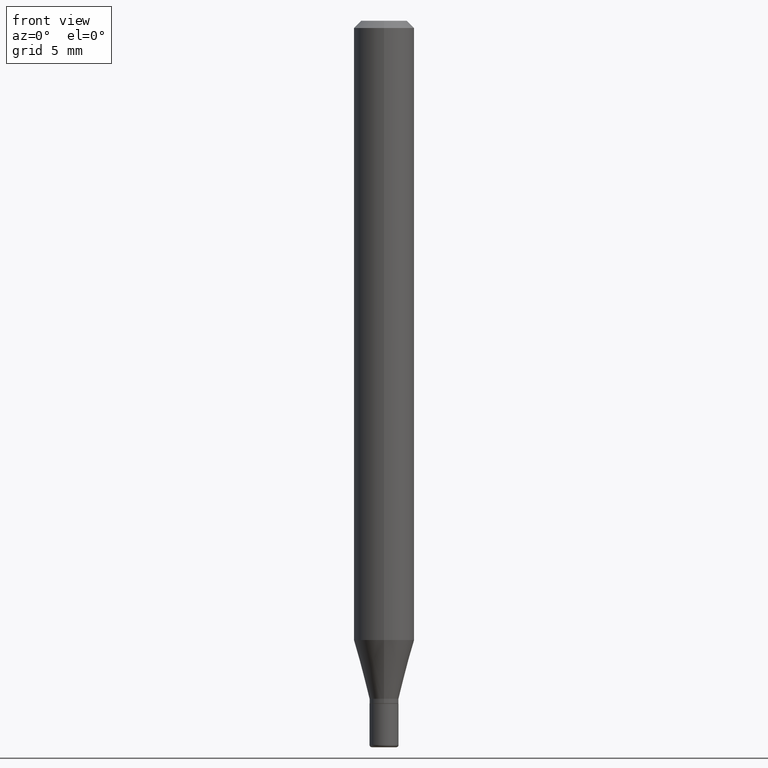
[diagram: clean part render]
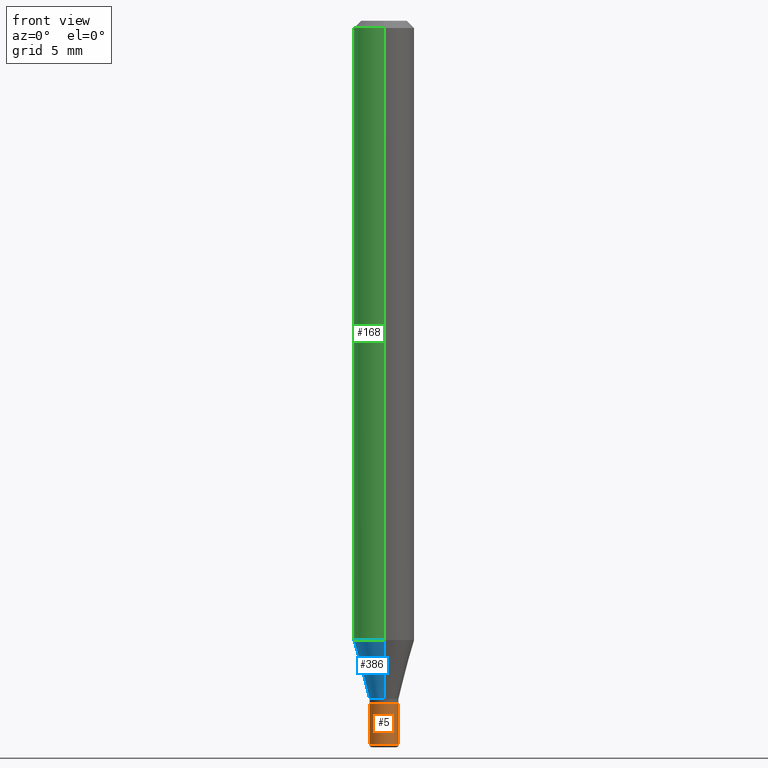
[diagram: same view with three faces highlighted in distinct colors, each labeled with its STEP entity id]
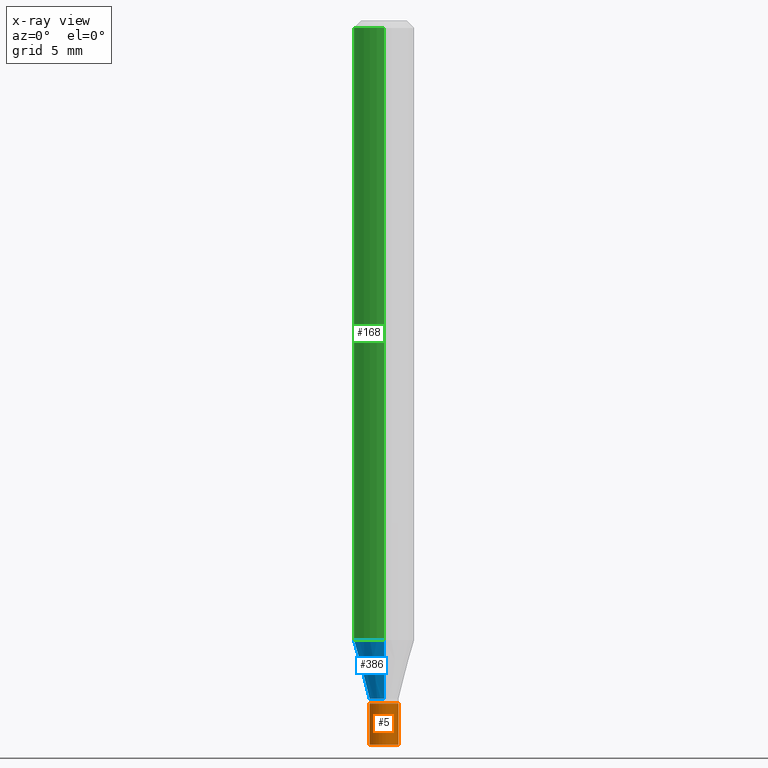
[diagram: x-ray of the same camera — body ghosted, the three highlighted faces saturated]
A machine part, front view with three faces highlighted in distinct colors.
The next image is the same camera in x-ray (body ghosted, the three faces saturated) — at least one of them is partly hidden behind the body in this view.
Their STEP definitions:

[orange] entity #5 — the highlighted cylindrical surface (edge-blend (fillet) strip) has radius 0.762 mm, axis along (-0, 0, 1).
#5 = ADVANCED_FACE ( 'NONE', ( #287 ), #89, .T. ) ;
#7 = CARTESIAN_POINT ( 'NONE',  ( 3.655975865246778562E-29, -5.219764601570502352E-15, -1.494999999999999662 ) ) ;
#26 = LINE ( 'NONE', #162, #494 ) ;
#59 = AXIS2_PLACEMENT_3D ( 'NONE', #133, #282, #86 ) ;
#62 = EDGE_CURVE ( 'NONE', #78, #166, #377, .T. ) ;
#77 = DIRECTION ( 'NONE',  ( -2.445468806185136877E-29, 3.491481338843145188E-15, 1.000000000000000000 ) ) ;
#78 = VERTEX_POINT ( 'NONE', #210 ) ;
#86 = DIRECTION ( 'NONE',  ( 1.000000000000000000, -6.982962677686268288E-15, 0.000000000000000000 ) ) ;
#89 = CYLINDRICAL_SURFACE ( 'NONE', #353, 0.03000000000000008910 ) ;
#95 = VECTOR ( 'NONE', #77, 39.37007874015748143 ) ;
#124 = EDGE_CURVE ( 'NONE', #495, #457, #288, .T. ) ;
#129 = DIRECTION ( 'NONE',  ( 1.000000000000000000, -6.982962677686259611E-15, 0.000000000000000000 ) ) ;
#133 = CARTESIAN_POINT ( 'NONE',  ( 3.448111016721042669E-29, -4.922988687768835701E-15, -1.409999999999999920 ) ) ;
#150 = AXIS2_PLACEMENT_3D ( 'NONE', #7, #172, #129 ) ;
#160 = ORIENTED_EDGE ( 'NONE', *, *, #451, .T. ) ;
#162 = CARTESIAN_POINT ( 'NONE',  ( -0.03000000000000008910, 2.131628207280306888E-16, -1.475680527076476261E-30 ) ) ;
#166 = VERTEX_POINT ( 'NONE', #478 ) ;
#172 = DIRECTION ( 'NONE',  ( -2.445468806185136597E-29, 3.491481338843145583E-15, 1.000000000000000000 ) ) ;
#173 = EDGE_CURVE ( 'NONE', #78, #495, #26, .T. ) ;
#198 = CARTESIAN_POINT ( 'NONE',  ( 0.02999999999999999889, -5.132477568099423229E-15, -1.409999999999999920 ) ) ;
#210 = CARTESIAN_POINT ( 'NONE',  ( -0.03000000000000017583, -4.858213823941637204E-15, -1.494999999999999662 ) ) ;
#230 = ORIENTED_EDGE ( 'NONE', *, *, #62, .T. ) ;
#277 = DIRECTION ( 'NONE',  ( -2.445468806185136597E-29, 3.491481338843145583E-15, 1.000000000000000000 ) ) ;
#282 = DIRECTION ( 'NONE',  ( -2.445468806185136597E-29, 3.491481338843145583E-15, 1.000000000000000000 ) ) ;
#285 = ORIENTED_EDGE ( 'NONE', *, *, #173, .F. ) ;
#287 = FACE_OUTER_BOUND ( 'NONE', #475, .T. ) ;
#288 = CIRCLE ( 'NONE', #59, 0.02999999999999999889 ) ;
#290 = ORIENTED_EDGE ( 'NONE', *, *, #124, .F. ) ;
#311 = DIRECTION ( 'NONE',  ( -2.445468806185136877E-29, 3.491481338843145188E-15, 1.000000000000000000 ) ) ;
#312 = CARTESIAN_POINT ( 'NONE',  ( 0.03000000000000008910, -2.094888803305886127E-16, 1.462853032738785082E-30 ) ) ;
#353 = AXIS2_PLACEMENT_3D ( 'NONE', #368, #277, #449 ) ;
#360 = CARTESIAN_POINT ( 'NONE',  ( -0.02999999999999999889, -4.858213823941637993E-15, -1.409999999999999920 ) ) ;
#368 = CARTESIAN_POINT ( 'NONE',  ( 0.000000000000000000, 0.000000000000000000, 0.000000000000000000 ) ) ;
#377 = CIRCLE ( 'NONE', #150, 0.03000000000000017583 ) ;
#405 = LINE ( 'NONE', #312, #95 ) ;
#449 = DIRECTION ( 'NONE',  ( 1.000000000000000000, -6.982962677686266711E-15, 4.876176775795935793E-29 ) ) ;
#451 = EDGE_CURVE ( 'NONE', #166, #457, #405, .T. ) ;
#457 = VERTEX_POINT ( 'NONE', #198 ) ;
#475 = EDGE_LOOP ( 'NONE', ( #285, #230, #160, #290 ) ) ;
#478 = CARTESIAN_POINT ( 'NONE',  ( 0.03000000000000017583, -5.429253481901091458E-15, -1.494999999999999662 ) ) ;
#494 = VECTOR ( 'NONE', #311, 39.37007874015748143 ) ;
#495 = VERTEX_POINT ( 'NONE', #360 ) ;

[blue] entity #386 — the highlighted conical surface has half-angle 15 deg.
#6 = CARTESIAN_POINT ( 'NONE',  ( 3.127180537988016728E-29, -4.464387054030078647E-15, -1.278708348754012292 ) ) ;
#49 = CONICAL_SURFACE ( 'NONE', #122, 0.03000000000000009950, 0.2617993877991495189 ) ;
#65 = EDGE_LOOP ( 'NONE', ( #212, #429, #76, #164 ) ) ;
#75 = DIRECTION ( 'NONE',  ( -2.445577633895310376E-29, 3.491325491368088236E-15, 1.000000000000000000 ) ) ;
#76 = ORIENTED_EDGE ( 'NONE', *, *, #408, .T. ) ;
#122 = AXIS2_PLACEMENT_3D ( 'NONE', #464, #225, #229 ) ;
#152 = DIRECTION ( 'NONE',  ( -1.807323732225324617E-15, -0.2588190451025174088, 0.9659258262890690894 ) ) ;
#154 = CARTESIAN_POINT ( 'NONE',  ( -2.094888803305543958E-16, -0.03000000000000498449, -1.400000000000000355 ) ) ;
#164 = ORIENTED_EDGE ( 'NONE', *, *, #450, .F. ) ;
#169 = DIRECTION ( 'NONE',  ( -6.982962677686265922E-15, -1.000000000000000000, 4.370956789862821150E-15 ) ) ;
#207 = AXIS2_PLACEMENT_3D ( 'NONE', #6, #75, #169 ) ;
#212 = ORIENTED_EDGE ( 'NONE', *, *, #303, .F. ) ;
#223 = DIRECTION ( 'NONE',  ( -2.445577633895310376E-29, 3.491325491368088236E-15, 1.000000000000000000 ) ) ;
#225 = DIRECTION ( 'NONE',  ( -2.445577633895310376E-29, 3.491325491368088236E-15, 1.000000000000000000 ) ) ;
#229 = DIRECTION ( 'NONE',  ( -6.982962677686265922E-15, -1.000000000000000000, 0.000000000000000000 ) ) ;
#231 = FACE_OUTER_BOUND ( 'NONE', #65, .T. ) ;
#242 = VERTEX_POINT ( 'NONE', #389 ) ;
#254 = VECTOR ( 'NONE', #302, 39.37007874015748854 ) ;
#256 = CARTESIAN_POINT ( 'NONE',  ( 4.440892098500935790E-16, 0.06249999999999550360, -1.278708348754012514 ) ) ;
#268 = VERTEX_POINT ( 'NONE', #256 ) ;
#300 = CARTESIAN_POINT ( 'NONE',  ( 2.131628207280649550E-16, 0.02999999999999521105, -1.400000000000000355 ) ) ;
#302 = DIRECTION ( 'NONE',  ( 1.839019923739594793E-15, 0.2588190451025241812, 0.9659258262890673130 ) ) ;
#303 = EDGE_CURVE ( 'NONE', #242, #268, #430, .T. ) ;
#315 = CARTESIAN_POINT ( 'NONE',  ( -4.364351673553605094E-16, -0.06250000000000449640, -1.278708348754012070 ) ) ;
#316 = VERTEX_POINT ( 'NONE', #511 ) ;
#343 = CARTESIAN_POINT ( 'NONE',  ( 3.423808687453435536E-29, -4.887855687915325108E-15, -1.400000000000000355 ) ) ;
#366 = EDGE_CURVE ( 'NONE', #242, #316, #498, .T. ) ;
#378 = AXIS2_PLACEMENT_3D ( 'NONE', #343, #223, #502 ) ;
#386 = ADVANCED_FACE ( 'NONE', ( #231 ), #49, .T. ) ;
#389 = CARTESIAN_POINT ( 'NONE',  ( 3.286260152890794642E-16, 0.02999999999999521105, -1.400000000000000355 ) ) ;
#408 = EDGE_CURVE ( 'NONE', #316, #508, #504, .T. ) ;
#429 = ORIENTED_EDGE ( 'NONE', *, *, #366, .T. ) ;
#430 = LINE ( 'NONE', #300, #254 ) ;
#450 = EDGE_CURVE ( 'NONE', #268, #508, #453, .T. ) ;
#453 = CIRCLE ( 'NONE', #207, 0.06250000000000000000 ) ;
#464 = CARTESIAN_POINT ( 'NONE',  ( 3.423808687453435536E-29, -4.887855687915325108E-15, -1.400000000000000355 ) ) ;
#484 = VECTOR ( 'NONE', #152, 39.37007874015748854 ) ;
#498 = CIRCLE ( 'NONE', #378, 0.03000000000000009950 ) ;
#502 = DIRECTION ( 'NONE',  ( -6.982962677686265922E-15, -1.000000000000000000, 0.000000000000000000 ) ) ;
#504 = LINE ( 'NONE', #154, #484 ) ;
#508 = VERTEX_POINT ( 'NONE', #315 ) ;
#511 = CARTESIAN_POINT ( 'NONE',  ( -2.094888803305543958E-16, -0.03000000000000498449, -1.400000000000000355 ) ) ;

[green] entity #168 — the highlighted cylindrical surface (edge-blend (fillet) strip) has radius 1.5875 mm, axis along (-0, 0, 1).
#6 = CARTESIAN_POINT ( 'NONE',  ( 3.127180537988016728E-29, -4.464387054030078647E-15, -1.278708348754012292 ) ) ;
#11 = EDGE_CURVE ( 'NONE', #268, #414, #246, .T. ) ;
#14 = VECTOR ( 'NONE', #488, 39.37007874015748143 ) ;
#18 = EDGE_LOOP ( 'NONE', ( #240, #394, #363, #406 ) ) ;
#22 = AXIS2_PLACEMENT_3D ( 'NONE', #70, #157, #30 ) ;
#30 = DIRECTION ( 'NONE',  ( -6.982962677686265922E-15, -1.000000000000000000, 3.491325491368088236E-15 ) ) ;
#45 = DIRECTION ( 'NONE',  ( -2.445577633895310376E-29, 3.491325491368088236E-15, 1.000000000000000000 ) ) ;
#60 = EDGE_CURVE ( 'NONE', #508, #349, #276, .T. ) ;
#63 = FACE_OUTER_BOUND ( 'NONE', #18, .T. ) ;
#70 = CARTESIAN_POINT ( 'NONE',  ( 0.000000000000000000, 0.000000000000000000, 0.000000000000000000 ) ) ;
#75 = DIRECTION ( 'NONE',  ( -2.445577633895310376E-29, 3.491325491368088236E-15, 1.000000000000000000 ) ) ;
#115 = CYLINDRICAL_SURFACE ( 'NONE', #22, 0.06250000000000000000 ) ;
#127 = EDGE_CURVE ( 'NONE', #414, #349, #141, .T. ) ;
#141 = CIRCLE ( 'NONE', #432, 0.06250000000000000000 ) ;
#157 = DIRECTION ( 'NONE',  ( -2.445577633895310376E-29, 3.491325491368088236E-15, 1.000000000000000000 ) ) ;
#167 = DIRECTION ( 'NONE',  ( -2.445577633895310376E-29, 3.491325491368088236E-15, 1.000000000000000000 ) ) ;
#168 = ADVANCED_FACE ( 'NONE', ( #63 ), #115, .T. ) ;
#169 = DIRECTION ( 'NONE',  ( -6.982962677686265922E-15, -1.000000000000000000, 4.370956789862821150E-15 ) ) ;
#185 = CARTESIAN_POINT ( 'NONE',  ( -4.364351673553912750E-16, -0.06250000000000005551, -0.01499999999999948597 ) ) ;
#206 = CARTESIAN_POINT ( 'NONE',  ( 4.440892098500625669E-16, 0.06250000000000000000, -2.182078432105055147E-16 ) ) ;
#207 = AXIS2_PLACEMENT_3D ( 'NONE', #6, #75, #169 ) ;
#240 = ORIENTED_EDGE ( 'NONE', *, *, #11, .F. ) ;
#246 = LINE ( 'NONE', #206, #272 ) ;
#248 = CARTESIAN_POINT ( 'NONE',  ( 3.668366450842892977E-31, -5.236988237052028199E-17, -0.01499999999999970281 ) ) ;
#256 = CARTESIAN_POINT ( 'NONE',  ( 4.440892098500935790E-16, 0.06249999999999550360, -1.278708348754012514 ) ) ;
#268 = VERTEX_POINT ( 'NONE', #256 ) ;
#272 = VECTOR ( 'NONE', #167, 39.37007874015748143 ) ;
#276 = LINE ( 'NONE', #324, #14 ) ;
#315 = CARTESIAN_POINT ( 'NONE',  ( -4.364351673553605094E-16, -0.06250000000000449640, -1.278708348754012070 ) ) ;
#324 = CARTESIAN_POINT ( 'NONE',  ( -4.364351673553916201E-16, -0.06250000000000000000, 2.182078432105055147E-16 ) ) ;
#346 = CARTESIAN_POINT ( 'NONE',  ( 4.440892098500940720E-16, 0.06249999999999995143, -0.01499999999999992138 ) ) ;
#349 = VERTEX_POINT ( 'NONE', #185 ) ;
#363 = ORIENTED_EDGE ( 'NONE', *, *, #60, .T. ) ;
#370 = DIRECTION ( 'NONE',  ( -6.982962677686265922E-15, -1.000000000000000000, 3.483106191921935554E-15 ) ) ;
#394 = ORIENTED_EDGE ( 'NONE', *, *, #450, .T. ) ;
#406 = ORIENTED_EDGE ( 'NONE', *, *, #127, .F. ) ;
#414 = VERTEX_POINT ( 'NONE', #346 ) ;
#432 = AXIS2_PLACEMENT_3D ( 'NONE', #248, #45, #370 ) ;
#450 = EDGE_CURVE ( 'NONE', #268, #508, #453, .T. ) ;
#453 = CIRCLE ( 'NONE', #207, 0.06250000000000000000 ) ;
#488 = DIRECTION ( 'NONE',  ( -2.445577633895310376E-29, 3.491325491368088236E-15, 1.000000000000000000 ) ) ;
#508 = VERTEX_POINT ( 'NONE', #315 ) ;